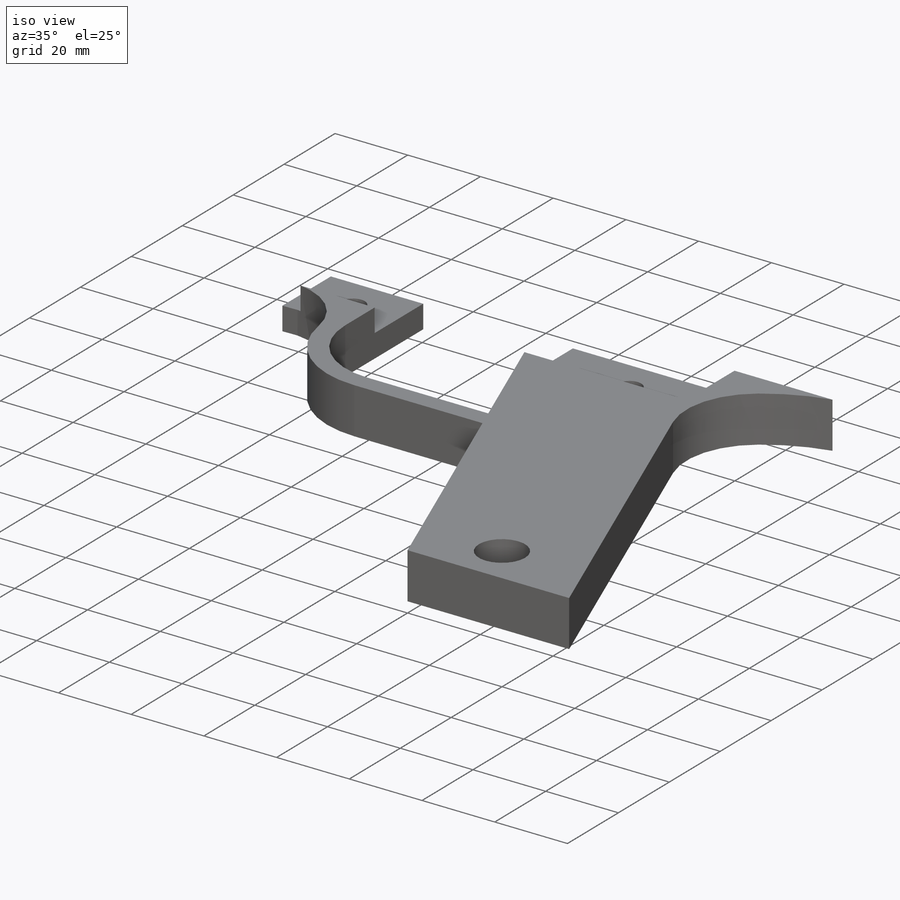
[diagram: iso view]
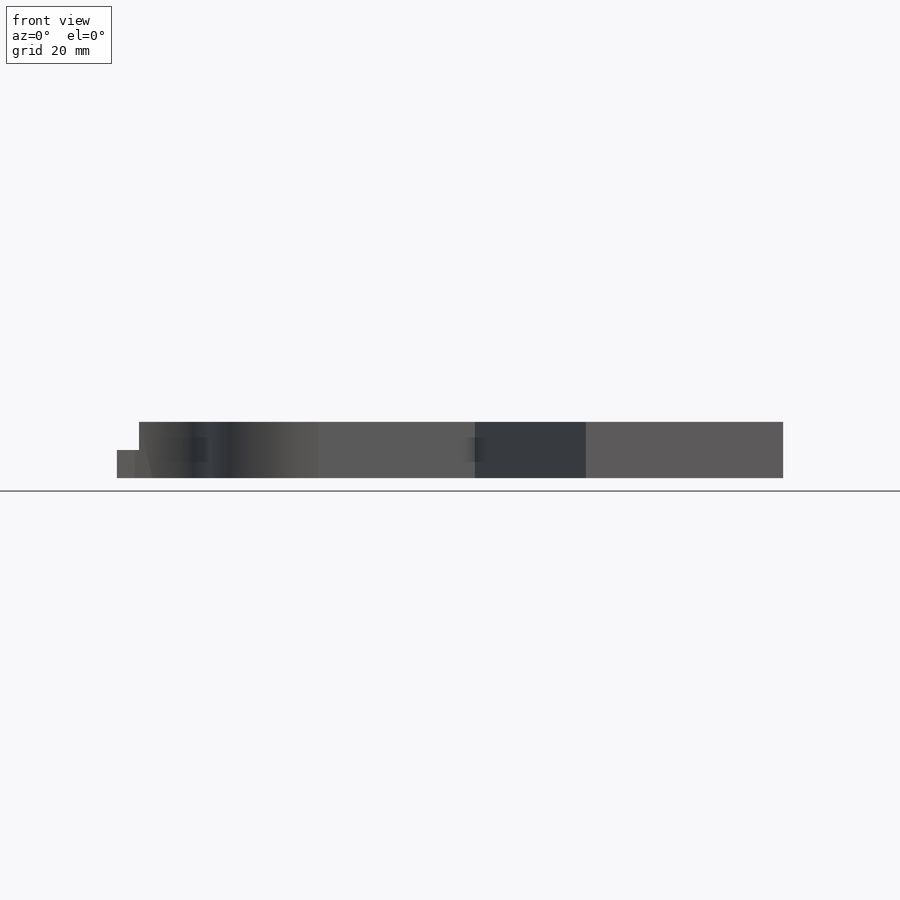
[diagram: front view]
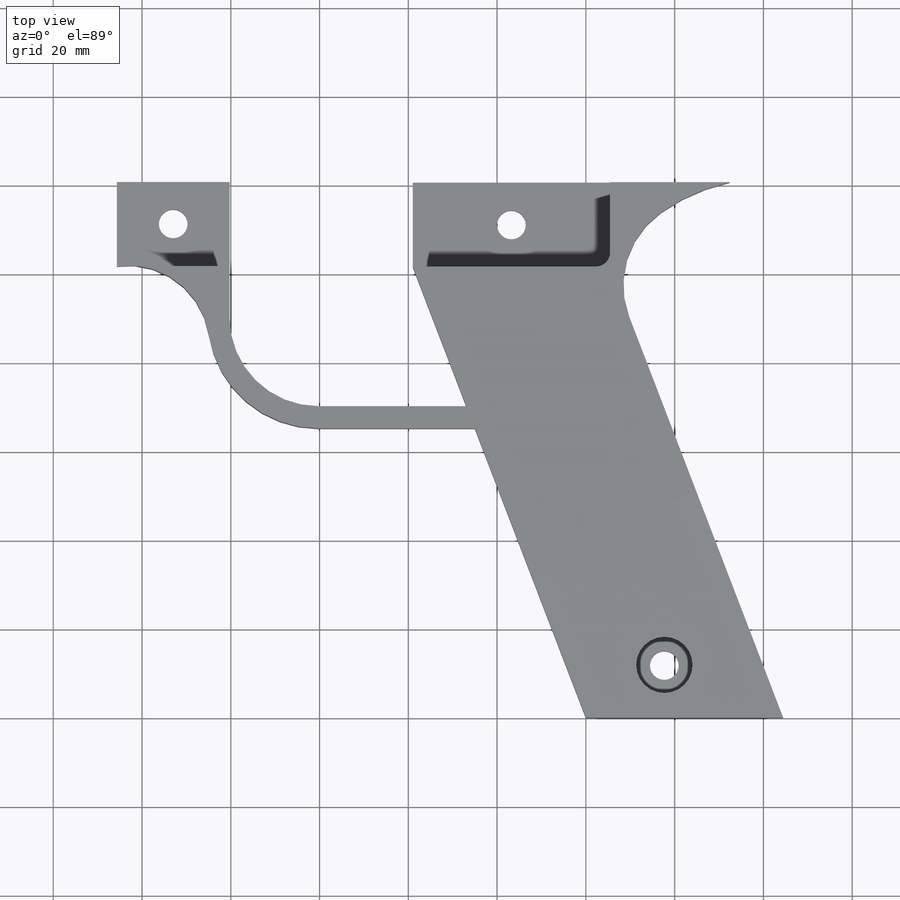
[diagram: top view]
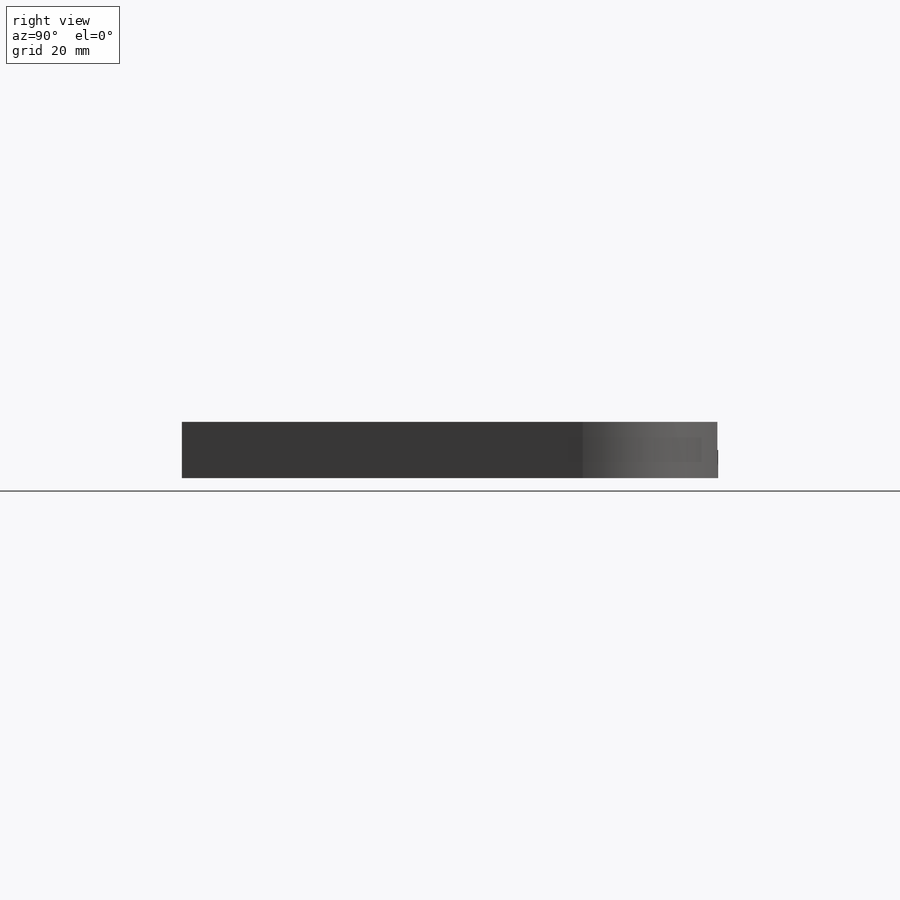
[diagram: right view]
SOLIDWORKS PART (.sldprt)
format: sldprt  version: not decoded by parser v0  size: 206,848 bytes
history: native  units: mm
features: sketch x5, extrude x3, cut_extrude x2, material x1, fillet x1 (+12 scaffold rows collapsed)
feature tree (24):
  scaffold x12  (default folders/planes/origin — collapsed)
  material  "Material <not specified>"
  sketch  "Sketch1"  dims[c1.D5=6.477mm c1.D7=6.477mm c1.D1=44.45mm c1.D2=101.6mm c1.D3=19.05mm c1.D4=~103.396253mm c2.D4=60.0deg c3.D4=101.6mm c4.D4=111.0deg c4.D6=12.7mm]
  extrude  "Boss-Extrude1"  Depth=12.7mm
  sketch  "Sketch2"  dims[D1=12.7mm]
  cut_extrude  "Cut-Extrude1"  Depth=6.35mm
  sketch  "Sketch3"  dims[D1=3.175mm]
  extrude  "Boss-Extrude4"  [1 undecoded]
  fillet  "Fillet1"  Radius=20mm
  sketch  "Sketch4"  dims[c1.D4=20.0mm c1.D6=6.477mm c1.D7=6.477mm c1.D1=19.05mm c1.D2=25.4mm c1.D3=31.75mm c2.D7=76.2mm c2.D5=5.0mm]
  extrude  "Boss-Extrude5"  Depth=12.7mm
  sketch  "Sketch5"
  cut_extrude  "Cut-Extrude2"  Depth=6.35mm
decode coverage: 9 of 11 modeling features carry decoded parameters
note: ~ marks probable driven/reference dimensions
note: 1 parameter value undecoded
note: suppression state not decoded; provenance and decode notes live in map.json
